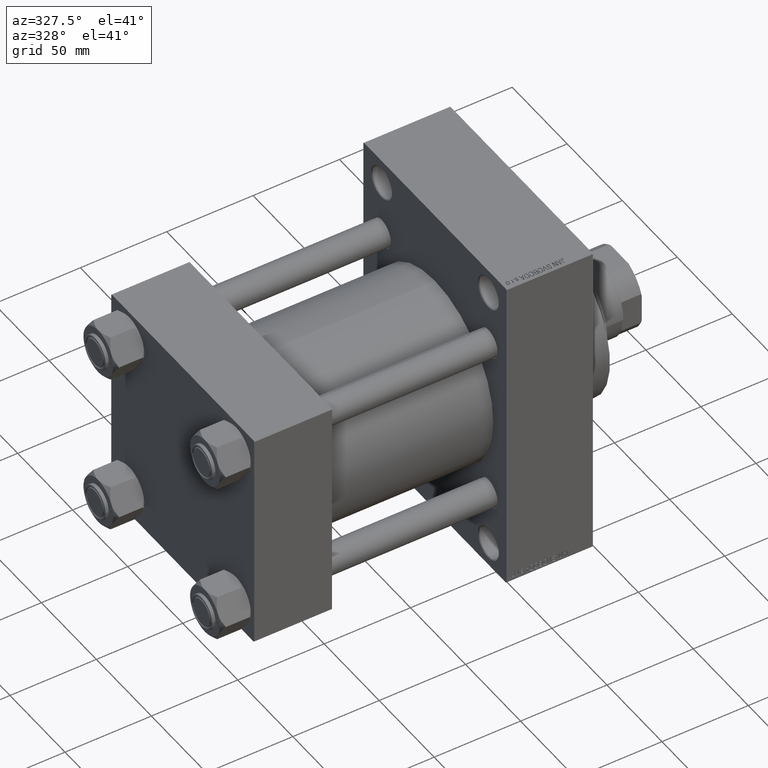
[diagram: clean part render]
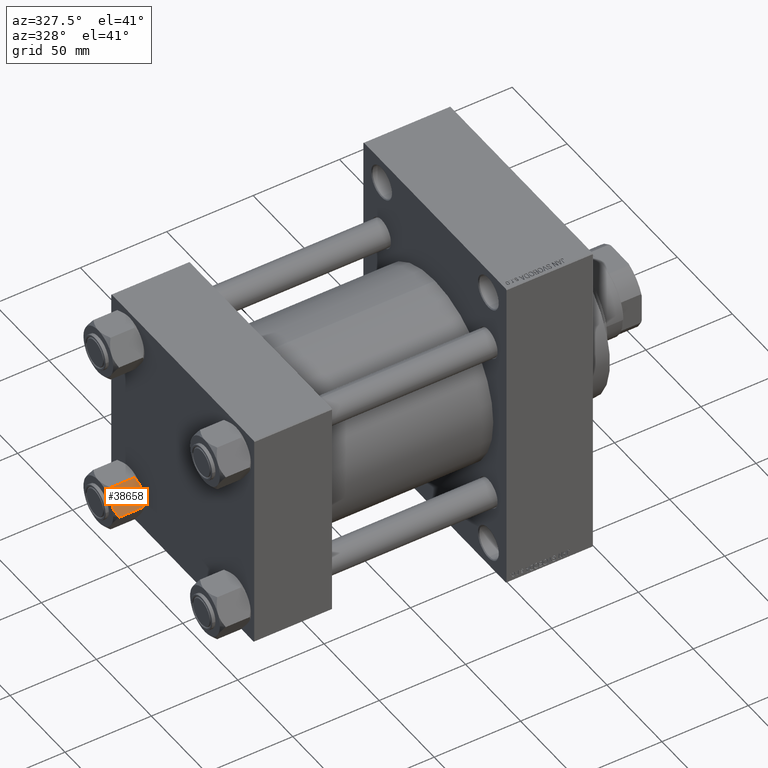
[diagram: same view with one face highlighted and labeled with its STEP entity id]
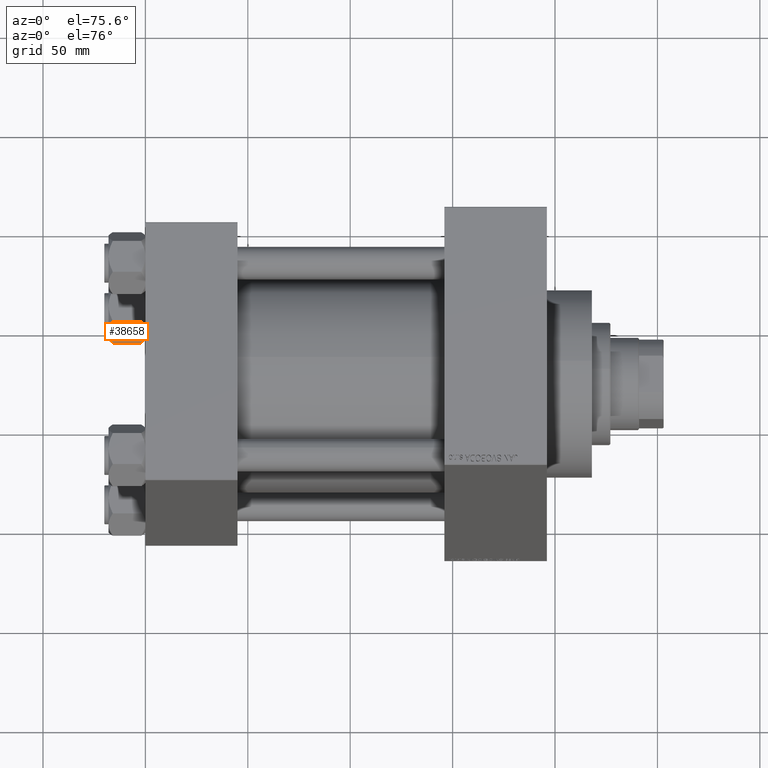
[diagram: same view with one face highlighted and labeled with its STEP entity id]
A machine part, auxiliary view. The second image highlights one B-rep face of the part: STEP entity #38658.
A second angle (auxiliary view) of the same face is appended — the face is thin or edge-on in the first view.
In plain terms, the highlighted planar face has unit normal (-0, 0.866, -0.5).
Its self-contained STEP definition (entity closure, byte-faithful):
#435 = ORIENTED_EDGE ( 'NONE', *, *, #16338, .F. ) ;
#1227 = CARTESIAN_POINT ( 'NONE',  ( 9.124083218049239719, 11.25125790807803483, -0.9473872146228128344 ) ) ;
#2570 = ORIENTED_EDGE ( 'NONE', *, *, #3074, .F. ) ;
#2771 = VERTEX_POINT ( 'NONE', #17667 ) ;
#3059 = VERTEX_POINT ( 'NONE', #31096 ) ;
#3074 = EDGE_CURVE ( 'NONE', #2771, #8131, #6275, .T. ) ;
#4147 = CARTESIAN_POINT ( 'NONE',  ( 12.37702203890362895, 5.617002596445055396, -18.00000000000001066 ) ) ;
#4312 = CARTESIAN_POINT ( 'NONE',  ( 11.71500000000000519, 6.763658403556469523, -18.00000000000000000 ) ) ;
#4317 = VECTOR ( 'NONE', #37489, 999.9999999999998863 ) ;
#4604 = VERTEX_POINT ( 'NONE', #13174 ) ;
#5755 = CARTESIAN_POINT ( 'NONE',  ( 12.38621571200405924, 5.601078687526928945, -0.05089381635301384876 ) ) ;
#5806 = CARTESIAN_POINT ( 'NONE',  ( 11.05297796109638320, 7.910314210667883650, 2.165016213181991667E-15 ) ) ;
#6275 = B_SPLINE_CURVE_WITH_KNOTS ( 'NONE', 3,
 ( #20011, #5806, #46303, #27986, #1227, #28233, #46788, #6525 ),
 .UNSPECIFIED., .F., .F.,
 ( 4, 2, 2, 4 ),
 ( 0.007890825462474437835, 0.01181022244528555538, 0.01376992093669111156, 0.01572961942809666946 ),
 .UNSPECIFIED. ) ;
#6525 = CARTESIAN_POINT ( 'NONE',  ( 7.903528262322677023, 13.36532110482643176, -2.000000000000000000 ) ) ;
#6568 = ORIENTED_EDGE ( 'NONE', *, *, #6773, .F. ) ;
#6773 = EDGE_CURVE ( 'NONE', #26022, #21468, #25912, .T. ) ;
#7139 = LINE ( 'NONE', #26656, #4317 ) ;
#7299 = CARTESIAN_POINT ( 'NONE',  ( 14.30591678195076355, 2.276058899034896221, -17.05261278537718184 ) ) ;
#8131 = VERTEX_POINT ( 'NONE', #25218 ) ;
#8404 = CARTESIAN_POINT ( 'NONE',  ( 11.38181071908714870, 7.340759166634869715, -18.00000000000000355 ) ) ;
#9300 = ORIENTED_EDGE ( 'NONE', *, *, #42924, .F. ) ;
#9394 = ORIENTED_EDGE ( 'NONE', *, *, #15838, .F. ) ;
#10169 = DIRECTION ( 'NONE',  ( -0.4999999999999999445, 0.8660254037844387076, 0.000000000000000000 ) ) ;
#10280 = LINE ( 'NONE', #13420, #43552 ) ;
#11107 = VECTOR ( 'NONE', #10169, 999.9999999999998863 ) ;
#11626 = CARTESIAN_POINT ( 'NONE',  ( 15.22736220980735844, 0.6800686015852226429, -16.29368822085855228 ) ) ;
#12126 = CARTESIAN_POINT ( 'NONE',  ( 7.903528262322677023, 13.36532110482643176, -16.00000000000000000 ) ) ;
#12501 = CARTESIAN_POINT ( 'NONE',  ( 14.92760668674625002, 1.199260397376449072, -1.411989271640066601 ) ) ;
#12590 = EDGE_CURVE ( 'NONE', #43382, #12754, #30373, .T. ) ;
#12754 = VERTEX_POINT ( 'NONE', #47705 ) ;
#13174 = CARTESIAN_POINT ( 'NONE',  ( 15.62000000000000455, -1.379485931020374819E-15, -16.00000000000000000 ) ) ;
#13420 = CARTESIAN_POINT ( 'NONE',  ( 15.62000000000000455, -1.379485931020374819E-15, -18.00000000000000000 ) ) ;
#13520 = AXIS2_PLACEMENT_3D ( 'NONE', #34993, #31124, #39343 ) ;
#13550 = CARTESIAN_POINT ( 'NONE',  ( 7.810000000000000497, 13.52731680711293905, -16.00000000000000000 ) ) ;
#13719 = CARTESIAN_POINT ( 'NONE',  ( 13.04337073483128506, 4.462852799541082938, -0.2430846701012968347 ) ) ;
#14026 = CARTESIAN_POINT ( 'NONE',  ( 7.810000000000001386, 13.52731680711293905, -1.999999999999998224 ) ) ;
#14254 = LINE ( 'NONE', #14026, #11107 ) ;
#15838 = EDGE_CURVE ( 'NONE', #21468, #3059, #38475, .T. ) ;
#16338 = EDGE_CURVE ( 'NONE', #29916, #2771, #42506, .T. ) ;
#17667 = CARTESIAN_POINT ( 'NONE',  ( 11.71500000000000519, 6.763658403556469523, 0.000000000000000000 ) ) ;
#20011 = CARTESIAN_POINT ( 'NONE',  ( 11.71500000000000519, 6.763658403556469523, 0.000000000000000000 ) ) ;
#20039 = FACE_OUTER_BOUND ( 'NONE', #47167, .T. ) ;
#20534 = LINE ( 'NONE', #46579, #38976 ) ;
#21001 = PLANE ( 'NONE',  #13520 ) ;
#21280 = CARTESIAN_POINT ( 'NONE',  ( 11.71500000000000519, 6.763658403556469523, -18.00000000000000000 ) ) ;
#21468 = VERTEX_POINT ( 'NONE', #21280 ) ;
#21756 = CARTESIAN_POINT ( 'NONE',  ( 11.71500000000000519, 6.763658403556469523, -18.00000000000000000 ) ) ;
#21995 = EDGE_CURVE ( 'NONE', #8131, #12754, #41462, .T. ) ;
#22239 = CARTESIAN_POINT ( 'NONE',  ( 15.52647173767732980, 0.1619957022865022300, -16.00000000000000000 ) ) ;
#22632 = CARTESIAN_POINT ( 'NONE',  ( 11.04378428799595468, 7.926238119586002995, -17.94910618364699317 ) ) ;
#23347 = CARTESIAN_POINT ( 'NONE',  ( 15.52647173767732980, 0.1619957022865022300, -2.000000000000000000 ) ) ;
#24409 = DIRECTION ( 'NONE',  ( 0.4999999999999999445, -0.8660254037844387076, 0.000000000000000000 ) ) ;
#25218 = CARTESIAN_POINT ( 'NONE',  ( 7.903528262322677023, 13.36532110482643176, -2.000000000000000000 ) ) ;
#25912 = B_SPLINE_CURVE_WITH_KNOTS ( 'NONE', 3,
 ( #29868, #45518, #26737, #37813, #41671, #22632, #8404, #4312 ),
 .UNSPECIFIED., .F., .F.,
 ( 4, 2, 2, 4 ),
 ( 4.472842641813524820E-07, 0.003945636373369301383, 0.005918230917921860935, 0.007890825462474420487 ),
 .UNSPECIFIED. ) ;
#26022 = VERTEX_POINT ( 'NONE', #12126 ) ;
#26656 = CARTESIAN_POINT ( 'NONE',  ( 7.810000000000001386, 13.52731680711293905, -16.00000000000000000 ) ) ;
#26737 = CARTESIAN_POINT ( 'NONE',  ( 9.114548888011785976, 11.26777185211903998, -17.08577173959729478 ) ) ;
#27310 = ORIENTED_EDGE ( 'NONE', *, *, #21995, .F. ) ;
#27460 = DIRECTION ( 'NONE',  ( -0.4999999999999999445, 0.8660254037844387076, 0.000000000000000000 ) ) ;
#27614 = ORIENTED_EDGE ( 'NONE', *, *, #42809, .F. ) ;
#27986 = CARTESIAN_POINT ( 'NONE',  ( 9.439480280627263298, 10.70497417113492489, -0.7317196846281137645 ) ) ;
#28131 = DIRECTION ( 'NONE',  ( -0.000000000000000000, -0.000000000000000000, 1.000000000000000000 ) ) ;
#28233 = CARTESIAN_POINT ( 'NONE',  ( 8.506059550806622127, 12.32170630002230283, -1.434462921875002683 ) ) ;
#28650 = CARTESIAN_POINT ( 'NONE',  ( 14.31545111198821552, 2.259544954993893295, -0.9142282604026940040 ) ) ;
#29868 = CARTESIAN_POINT ( 'NONE',  ( 7.903528262322677023, 13.36532110482643176, -16.00000000000000000 ) ) ;
#29916 = VERTEX_POINT ( 'NONE', #40306 ) ;
#30373 = LINE ( 'NONE', #34229, #35688 ) ;
#31096 = CARTESIAN_POINT ( 'NONE',  ( 15.52647173767732980, 0.1619957022865022300, -16.00000000000000000 ) ) ;
#31124 = DIRECTION ( 'NONE',  ( -0.8660254037844387076, -0.4999999999999999445, 0.000000000000000000 ) ) ;
#31538 = VERTEX_POINT ( 'NONE', #42436 ) ;
#32015 = CARTESIAN_POINT ( 'NONE',  ( 12.04818928091285812, 6.186557640478062225, 2.165016213181991667E-15 ) ) ;
#32262 = CARTESIAN_POINT ( 'NONE',  ( 13.36540581434588049, 3.905071680002324630, -0.3836066851120584764 ) ) ;
#32490 = CARTESIAN_POINT ( 'NONE',  ( 11.71500000000000519, 6.763658403556469523, 0.000000000000000000 ) ) ;
#33225 = ORIENTED_EDGE ( 'NONE', *, *, #35998, .F. ) ;
#33555 = CARTESIAN_POINT ( 'NONE',  ( 13.99051971937273997, 2.822342635978008385, -17.26828031537188934 ) ) ;
#33791 = CARTESIAN_POINT ( 'NONE',  ( 13.02784502466562699, 4.489744118371587156, -17.80281335400755083 ) ) ;
#34229 = CARTESIAN_POINT ( 'NONE',  ( 7.810000000000001386, 13.52731680711293905, -18.00000000000000000 ) ) ;
#34330 = VECTOR ( 'NONE', #27460, 999.9999999999998863 ) ;
#34469 = DIRECTION ( 'NONE',  ( -0.000000000000000000, -0.000000000000000000, 1.000000000000000000 ) ) ;
#34993 = CARTESIAN_POINT ( 'NONE',  ( 7.810000000000001386, 13.52731680711293905, -18.00000000000000000 ) ) ;
#35688 = VECTOR ( 'NONE', #34469, 1000.000000000000000 ) ;
#35998 = EDGE_CURVE ( 'NONE', #31538, #29916, #14254, .T. ) ;
#36929 = ORIENTED_EDGE ( 'NONE', *, *, #12590, .T. ) ;
#37412 = CARTESIAN_POINT ( 'NONE',  ( 14.92394044919338114, 1.205610507090631334, -16.56553707812499354 ) ) ;
#37489 = DIRECTION ( 'NONE',  ( 0.4999999999999999445, -0.8660254037844387076, 0.000000000000000000 ) ) ;
#37813 = CARTESIAN_POINT ( 'NONE',  ( 10.06459418565412278, 9.622245127110613083, -17.61639331488794014 ) ) ;
#38475 = B_SPLINE_CURVE_WITH_KNOTS ( 'NONE', 3,
 ( #21756, #4147, #33791, #33555, #7299, #37412, #11626, #22239 ),
 .UNSPECIFIED., .F., .F.,
 ( 4, 2, 2, 4 ),
 ( 0.007890825462474420487, 0.01181022244528553804, 0.01376992093669109421, 0.01572961942809665212 ),
 .UNSPECIFIED. ) ;
#38658 = ADVANCED_FACE ( 'NONE', ( #20039 ), #21001, .F. ) ;
#38786 = CARTESIAN_POINT ( 'NONE',  ( 7.810000000000001386, 13.52731680711293905, -1.999999999999998224 ) ) ;
#38976 = VECTOR ( 'NONE', #24409, 999.9999999999998863 ) ;
#39343 = DIRECTION ( 'NONE',  ( 0.4999999999999998890, -0.8660254037844385966, 0.000000000000000000 ) ) ;
#39535 = ORIENTED_EDGE ( 'NONE', *, *, #44153, .F. ) ;
#40306 = CARTESIAN_POINT ( 'NONE',  ( 15.52647173767732980, 0.1619957022865022300, -2.000000000000000000 ) ) ;
#41462 = LINE ( 'NONE', #38786, #34330 ) ;
#41671 = CARTESIAN_POINT ( 'NONE',  ( 10.38662926516872353, 9.064464007571851667, -17.75691532989870680 ) ) ;
#42436 = CARTESIAN_POINT ( 'NONE',  ( 15.62000000000000455, -1.379485931020374819E-15, -1.999999999999998224 ) ) ;
#42506 = B_SPLINE_CURVE_WITH_KNOTS ( 'NONE', 3,
 ( #23347, #12501, #28650, #32262, #13719, #5755, #32015, #32490 ),
 .UNSPECIFIED., .F., .F.,
 ( 4, 2, 2, 4 ),
 ( 4.472842641970240738E-07, 0.003945636373369317863, 0.005918230917921878283, 0.007890825462474437835 ),
 .UNSPECIFIED. ) ;
#42809 = EDGE_CURVE ( 'NONE', #4604, #31538, #10280, .T. ) ;
#42924 = EDGE_CURVE ( 'NONE', #43382, #26022, #7139, .T. ) ;
#43382 = VERTEX_POINT ( 'NONE', #13550 ) ;
#43552 = VECTOR ( 'NONE', #28131, 1000.000000000000000 ) ;
#44153 = EDGE_CURVE ( 'NONE', #3059, #4604, #20534, .T. ) ;
#45518 = CARTESIAN_POINT ( 'NONE',  ( 8.502393313253755025, 12.32805640973648309, -16.58801072835992585 ) ) ;
#46303 = CARTESIAN_POINT ( 'NONE',  ( 10.40215497533437450, 9.037572688741345672, -0.1971866459924547788 ) ) ;
#46579 = CARTESIAN_POINT ( 'NONE',  ( 7.810000000000001386, 13.52731680711293905, -16.00000000000000000 ) ) ;
#46788 = CARTESIAN_POINT ( 'NONE',  ( 8.202637790192646605, 12.84724820552771085, -1.706311779141445717 ) ) ;
#47167 = EDGE_LOOP ( 'NONE', ( #9300, #36929, #27310, #2570, #435, #33225, #27614, #39535, #9394, #6568 ) ) ;
#47705 = CARTESIAN_POINT ( 'NONE',  ( 7.810000000000000497, 13.52731680711293905, -1.999999999999998224 ) ) ;